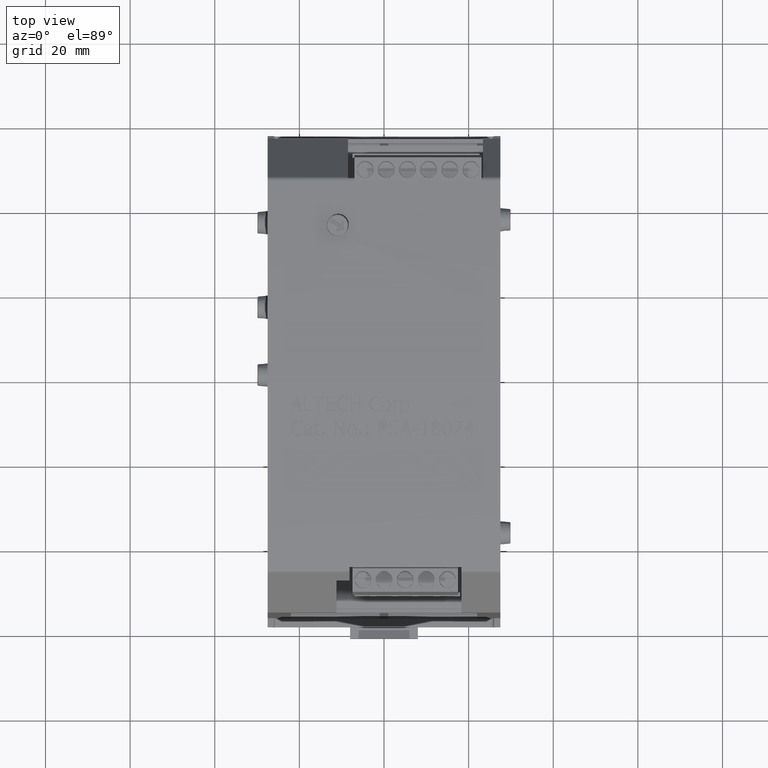
[diagram: clean part render]
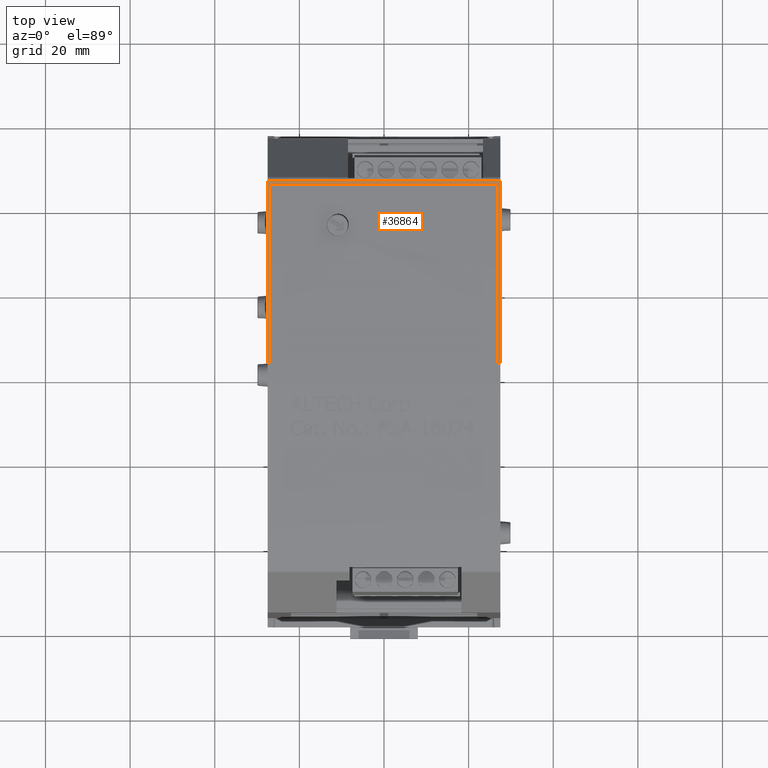
[diagram: same view with one face highlighted and labeled with its STEP entity id]
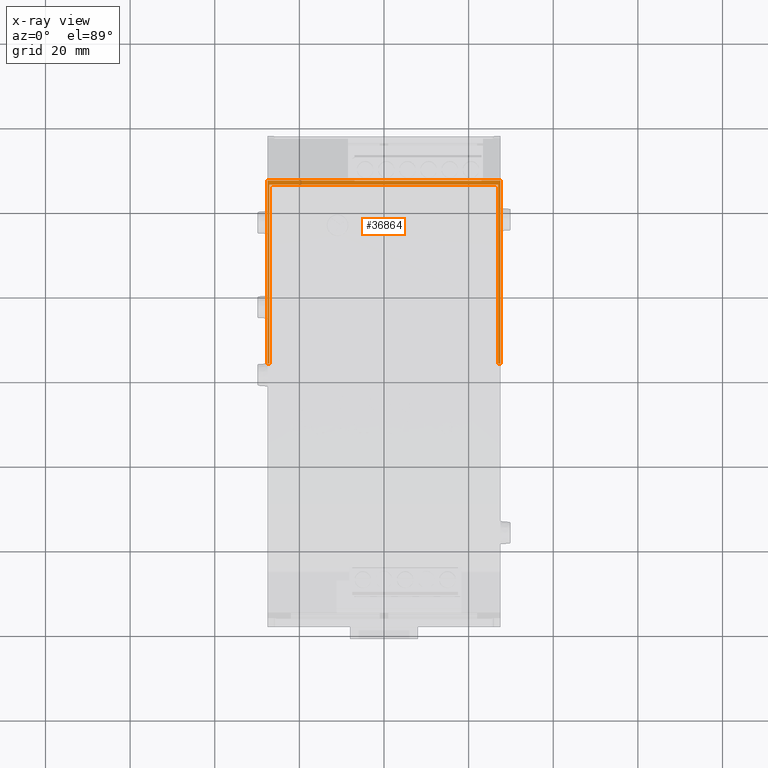
[diagram: x-ray of the same camera — body ghosted, the highlighted face saturated]
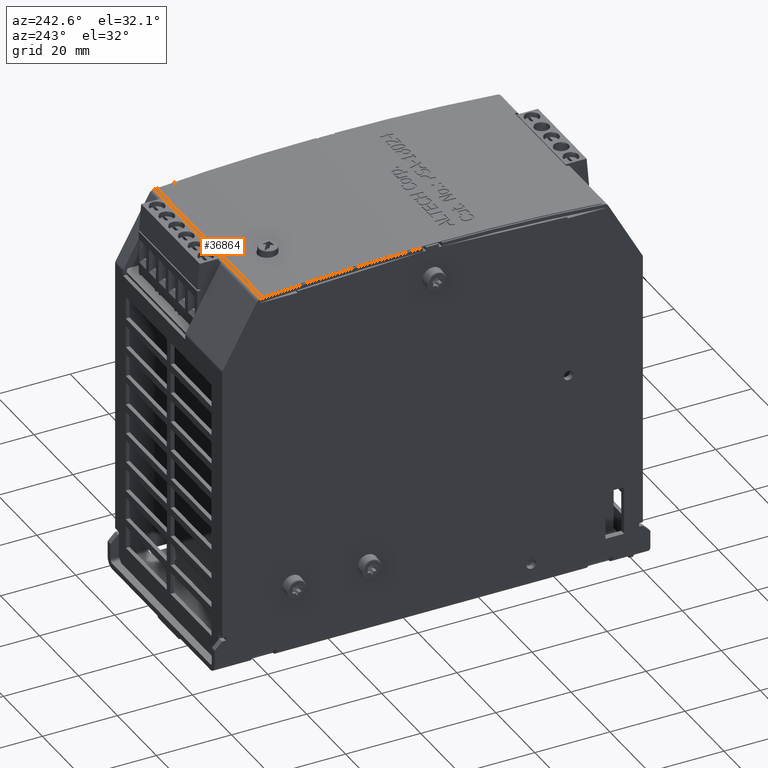
[diagram: same view with one face highlighted and labeled with its STEP entity id]
A machine part, top view. The second image highlights one B-rep face of the part: STEP entity #36864.
The next image is the same camera in x-ray: the body ghosted, the highlighted face saturated — about 0% of this face is hidden behind the body in this view.
A second angle (auxiliary view) of the same face is appended — the face is thin or edge-on in the first view.
In plain terms, the highlighted cylindrical surface (partial cylindrical patch) has radius 541.507 mm, axis along (-1, 0, 0).
Its self-contained STEP definition (entity closure, byte-faithful):
#480=CARTESIAN_POINT('',(-1.068169326593714,0.098457790772829,4.051157788674852));
#481=VERTEX_POINT('',#480);
#548=CARTESIAN_POINT('',(1.06182292687699,0.098457790772829,4.051157788674852));
#549=VERTEX_POINT('',#548);
#621=CARTESIAN_POINT('',(-1.068169326593714,1.766602806201115,3.983319728138901));
#622=VERTEX_POINT('',#621);
#629=CARTESIAN_POINT('',(-1.068169326593714,0.066929133864541,-17.267984561746918));
#630=DIRECTION('',(-1.0,0.0,0.0));
#631=DIRECTION('',(0.0,-2.938006E-013,1.0));
#632=AXIS2_PLACEMENT_3D('',#629,#630,#631);
#633=CIRCLE('',#632,21.319165664109686);
#634=EDGE_CURVE('',#481,#622,#633,.T.);
#694=CARTESIAN_POINT('',(1.06182292687699,1.766602806201115,3.983319728138901));
#695=VERTEX_POINT('',#694);
#702=CARTESIAN_POINT('',(-1.068169326593714,1.766602806201115,3.983319728138901));
#703=DIRECTION('',(1.0,0.0,0.0));
#704=VECTOR('',#703,2.129992253470704);
#705=LINE('',#702,#704);
#706=EDGE_CURVE('',#622,#695,#705,.T.);
#743=CARTESIAN_POINT('',(1.06182292687699,0.066929133864541,-17.267984561746918));
#744=DIRECTION('',(1.0,0.0,0.0));
#745=DIRECTION('',(0.0,-2.938006E-013,1.0));
#746=AXIS2_PLACEMENT_3D('',#743,#744,#745);
#747=CIRCLE('',#746,21.319165664109686);
#748=EDGE_CURVE('',#695,#549,#747,.T.);
#28748=CARTESIAN_POINT('',(-0.274338582677101,1.801900937248484,3.980467086672459));
#28749=VERTEX_POINT('',#28748);
#28750=CARTESIAN_POINT('',(-0.274338582677101,1.804041199737872,3.980292222132534));
#28751=VERTEX_POINT('',#28750);
#28752=CARTESIAN_POINT('',(-0.274338582677101,0.066929133864541,-17.267984561746918));
#28753=DIRECTION('',(-1.0,0.0,0.0));
#28754=DIRECTION('',(0.0,-2.938006E-013,1.0));
#28755=AXIS2_PLACEMENT_3D('',#28752,#28753,#28754);
#28756=CIRCLE('',#28755,21.319165664109686);
#28757=EDGE_CURVE('',#28749,#28751,#28756,.T.);
#31710=CARTESIAN_POINT('',(-1.082677165354347,1.804041199737872,3.980292222132534));
#31711=VERTEX_POINT('',#31710);
#31719=CARTESIAN_POINT('',(-1.082677165354347,1.804041199737872,3.980292222132534));
#31720=DIRECTION('',(1.0,0.0,0.0));
#31721=VECTOR('',#31720,0.808338582677246);
#31722=LINE('',#31719,#31721);
#31723=EDGE_CURVE('',#31711,#28751,#31722,.T.);
#36797=CARTESIAN_POINT('',(-1.835802E-014,0.066929133864541,-17.267984561746918));
#36798=DIRECTION('',(-1.0,0.0,0.0));
#36799=DIRECTION('',(0.0,-2.938006E-013,1.0));
#36800=AXIS2_PLACEMENT_3D('',#36797,#36798,#36799);
#36801=CYLINDRICAL_SURFACE('',#36800,21.319165664109686);
#36802=ORIENTED_EDGE('',*,*,#748,.T.);
#36803=CARTESIAN_POINT('',(1.082677165354315,0.098457790772829,4.051157788674852));
#36804=VERTEX_POINT('',#36803);
#36805=CARTESIAN_POINT('',(1.061822926876991,0.098457790772829,4.051157788674852));
#36806=DIRECTION('',(1.0,0.0,0.0));
#36807=VECTOR('',#36806,0.020854238477324);
#36808=LINE('',#36805,#36807);
#36809=EDGE_CURVE('',#549,#36804,#36808,.T.);
#36810=ORIENTED_EDGE('',*,*,#36809,.T.);
#36811=CARTESIAN_POINT('',(1.082677165354315,1.804041199737872,3.980292222132538));
#36812=VERTEX_POINT('',#36811);
#36813=CARTESIAN_POINT('',(1.082677165354315,0.066929133864541,-17.267984561746918));
#36814=DIRECTION('',(-1.0,0.0,0.0));
#36815=DIRECTION('',(0.0,0.001478887936096,0.999998906444638));
#36816=AXIS2_PLACEMENT_3D('',#36813,#36814,#36815);
#36817=CIRCLE('',#36816,21.319165664109686);
#36818=EDGE_CURVE('',#36804,#36812,#36817,.T.);
#36819=ORIENTED_EDGE('',*,*,#36818,.T.);
#36820=CARTESIAN_POINT('',(0.906763779527623,1.804041199737872,3.980292222132534));
#36821=VERTEX_POINT('',#36820);
#36822=CARTESIAN_POINT('',(0.906763779527623,1.804041199737872,3.980292222132534));
#36823=DIRECTION('',(1.0,0.0,0.0));
#36824=VECTOR('',#36823,0.175913385826692);
#36825=LINE('',#36822,#36824);
#36826=EDGE_CURVE('',#36821,#36812,#36825,.T.);
#36827=ORIENTED_EDGE('',*,*,#36826,.F.);
#36828=CARTESIAN_POINT('',(0.906763779527623,1.801900937248483,3.980467086672459));
#36829=VERTEX_POINT('',#36828);
#36830=CARTESIAN_POINT('',(0.906763779527623,0.066929133864541,-17.267984561746918));
#36831=DIRECTION('',(1.0,0.0,0.0));
#36832=DIRECTION('',(0.0,-2.938006E-013,1.0));
#36833=AXIS2_PLACEMENT_3D('',#36830,#36831,#36832);
#36834=CIRCLE('',#36833,21.319165664109686);
#36835=EDGE_CURVE('',#36821,#36829,#36834,.T.);
#36836=ORIENTED_EDGE('',*,*,#36835,.T.);
#36837=CARTESIAN_POINT('',(0.906763779527623,1.801900937248483,3.980467086672462));
#36838=DIRECTION('',(-1.0,0.0,0.0));
#36839=VECTOR('',#36838,1.181102362204725);
#36840=LINE('',#36837,#36839);
#36841=EDGE_CURVE('',#36829,#28749,#36840,.T.);
#36842=ORIENTED_EDGE('',*,*,#36841,.T.);
#36843=ORIENTED_EDGE('',*,*,#28757,.T.);
#36844=ORIENTED_EDGE('',*,*,#31723,.F.);
#36845=CARTESIAN_POINT('',(-1.082677165354348,0.098457790772829,4.051157788674852));
#36846=VERTEX_POINT('',#36845);
#36847=CARTESIAN_POINT('',(-1.082677165354347,0.066929133864541,-17.267984561746918));
#36848=DIRECTION('',(-1.0,0.0,0.0));
#36849=DIRECTION('',(0.0,0.001478887936096,0.999998906444638));
#36850=AXIS2_PLACEMENT_3D('',#36847,#36848,#36849);
#36851=CIRCLE('',#36850,21.319165664109686);
#36852=EDGE_CURVE('',#36846,#31711,#36851,.T.);
#36853=ORIENTED_EDGE('',*,*,#36852,.F.);
#36854=CARTESIAN_POINT('',(-1.082677165354348,0.098457790772829,4.051157788674852));
#36855=DIRECTION('',(1.0,0.0,0.0));
#36856=VECTOR('',#36855,0.014507838760634);
#36857=LINE('',#36854,#36856);
#36858=EDGE_CURVE('',#36846,#481,#36857,.T.);
#36859=ORIENTED_EDGE('',*,*,#36858,.T.);
#36860=ORIENTED_EDGE('',*,*,#634,.T.);
#36861=ORIENTED_EDGE('',*,*,#706,.T.);
#36862=EDGE_LOOP('',(#36802,#36810,#36819,#36827,#36836,#36842,#36843,#36844,#36853,#36859,#36860,#36861));
#36863=FACE_OUTER_BOUND('',#36862,.T.);
#36864=ADVANCED_FACE('',(#36863),#36801,.T.);